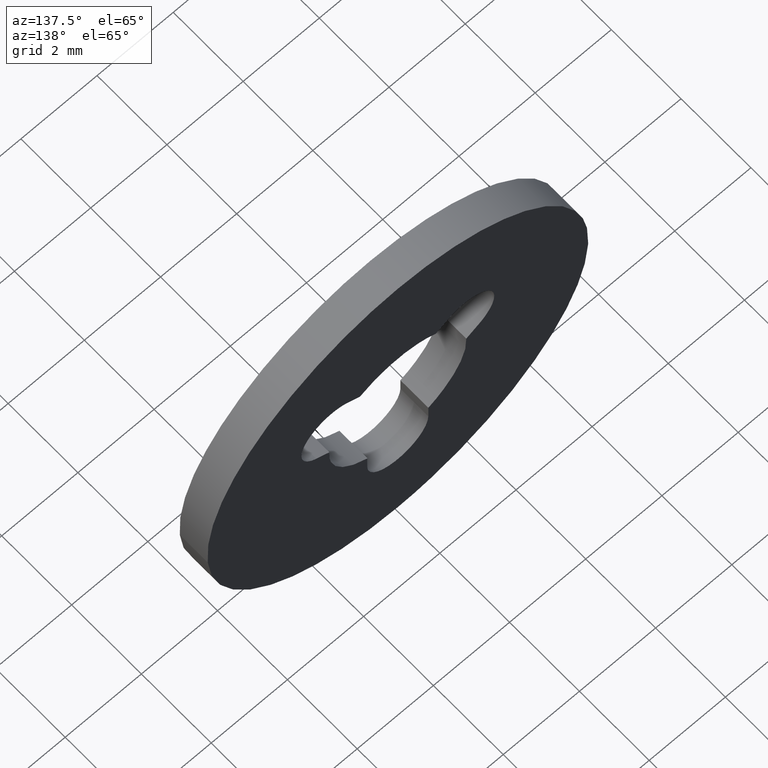
[diagram: clean part render]
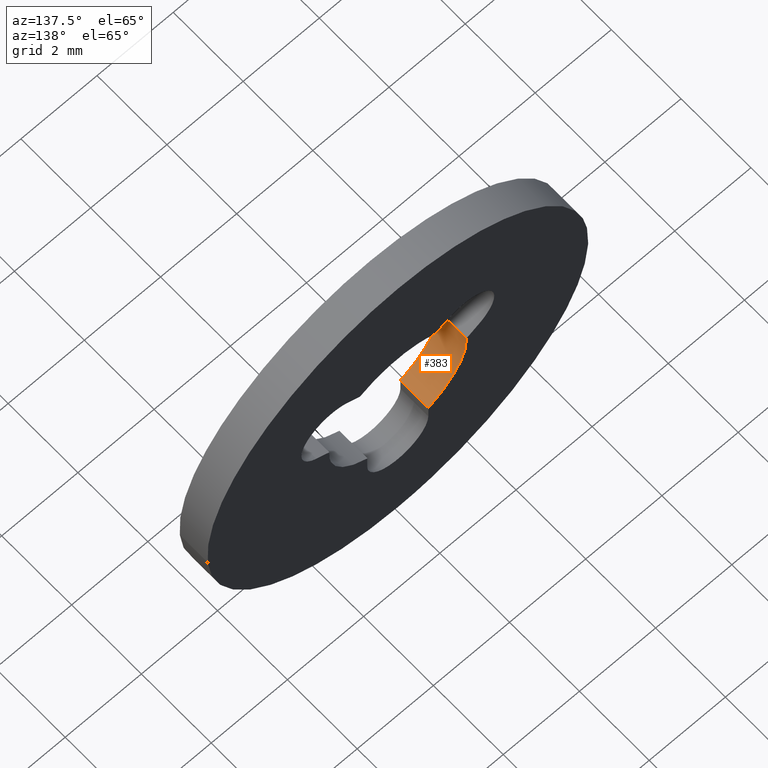
[diagram: same view with one face highlighted and labeled with its STEP entity id]
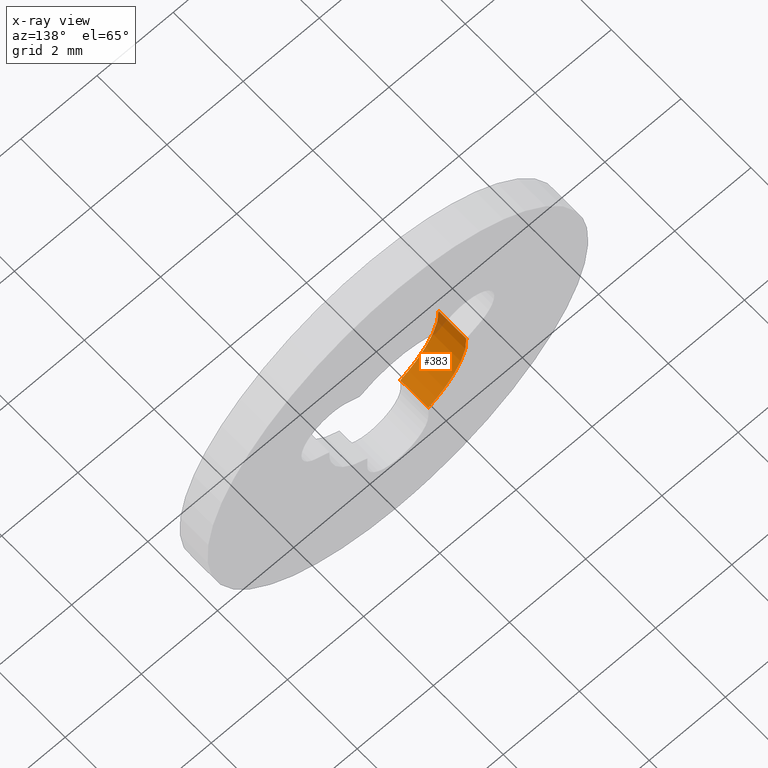
[diagram: x-ray of the same camera — body ghosted, the highlighted face saturated]
A machine part, auxiliary view. The second image highlights one B-rep face of the part: STEP entity #383.
The next image is the same camera in x-ray: the body ghosted, the highlighted face saturated — about 5% of this face is hidden behind the body in this view.
In plain terms, the highlighted face is a freeform B-spline surface patch.
Its self-contained STEP definition (entity closure, byte-faithful):
#308=CARTESIAN_POINT('',(-0.800000000000000,0.0,-1.612451549659710));
#309=VERTEX_POINT('',#308);
#316=CARTESIAN_POINT('',(-0.800000000000000,0.800000000000023,-1.612451549659710));
#317=VERTEX_POINT('',#316);
#323=CARTESIAN_POINT('',(-0.800000000000000,0.800000000000023,-1.612451549659710));
#324=CARTESIAN_POINT('',(-0.800000000000000,0.0,-1.612451549659710));
#325=QUASI_UNIFORM_CURVE('',1,(#323,#324),.UNSPECIFIED.,.F.,.U.);
#326=EDGE_CURVE('',#317,#309,#325,.T.);
#331=CARTESIAN_POINT('',(-0.735352100026733,0.820000000000024,-1.642941657207057));
#332=CARTESIAN_POINT('',(-0.735352100026733,-0.020500000000001,-1.642941657207057));
#333=CARTESIAN_POINT('',(-1.943554409577728,0.820000000000024,-1.102171325109073));
#334=CARTESIAN_POINT('',(-1.943554409577728,-0.020500000000001,-1.102171325109073));
#335=CARTESIAN_POINT('',(-1.787437346550587,0.820000000000024,0.212291620551055));
#336=CARTESIAN_POINT('',(-1.787437346550587,-0.020500000000001,0.212291620551055));
#344=(BOUNDED_SURFACE()B_SPLINE_SURFACE(1,2,((#331,#333,#335),(#332,#334,#336)),.UNSPECIFIED.,.F.,.F.,.U.)B_SPLINE_SURFACE_WITH_KNOTS((2,2),(3,3),(0.0,1.0),(0.0,2.362383615130197),.UNSPECIFIED.)GEOMETRIC_REPRESENTATION_ITEM()RATIONAL_B_SPLINE_SURFACE(((1.0,0.802530900722325,0.992359931106881),(1.0,0.802530900722325,0.992359931106881)))REPRESENTATION_ITEM('')SURFACE());
#345=CARTESIAN_POINT('',(-1.796423492117540,0.0,0.113413566067874));
#346=VERTEX_POINT('',#345);
#347=CARTESIAN_POINT('',(-1.796423492117537,0.0,0.113413566067874));
#348=CARTESIAN_POINT('',(-1.871810468826477,0.0,-1.080684641536401));
#349=CARTESIAN_POINT('',(-0.800000000000000,0.0,-1.612451549659710));
#357=(BOUNDED_CURVE()B_SPLINE_CURVE(2,(#347,#348,#349),.UNSPECIFIED.,.F.,.U.)CURVE()GEOMETRIC_REPRESENTATION_ITEM()QUASI_UNIFORM_CURVE()RATIONAL_B_SPLINE_CURVE((1.0,0.832802137488904,1.0))REPRESENTATION_ITEM(''));
#358=EDGE_CURVE('',#346,#309,#357,.T.);
#359=ORIENTED_EDGE('',*,*,#358,.T.);
#360=ORIENTED_EDGE('',*,*,#326,.F.);
#361=CARTESIAN_POINT('',(-1.796423492117540,0.800000000000023,0.113413566067874));
#362=VERTEX_POINT('',#361);
#363=CARTESIAN_POINT('',(-1.796423492117537,0.800000000000023,0.113413566067874));
#364=CARTESIAN_POINT('',(-1.871810468826477,0.800000000000023,-1.080684641536401));
#365=CARTESIAN_POINT('',(-0.800000000000000,0.800000000000023,-1.612451549659710));
#373=(BOUNDED_CURVE()B_SPLINE_CURVE(2,(#363,#364,#365),.UNSPECIFIED.,.F.,.U.)CURVE()GEOMETRIC_REPRESENTATION_ITEM()QUASI_UNIFORM_CURVE()RATIONAL_B_SPLINE_CURVE((1.0,0.832802137488904,1.0))REPRESENTATION_ITEM(''));
#374=EDGE_CURVE('',#362,#317,#373,.T.);
#375=ORIENTED_EDGE('',*,*,#374,.F.);
#376=CARTESIAN_POINT('',(-1.796423492117540,0.800000000000023,0.113413566067874));
#377=CARTESIAN_POINT('',(-1.796423492117540,0.0,0.113413566067874));
#378=QUASI_UNIFORM_CURVE('',1,(#376,#377),.UNSPECIFIED.,.F.,.U.);
#379=EDGE_CURVE('',#362,#346,#378,.T.);
#380=ORIENTED_EDGE('',*,*,#379,.T.);
#381=EDGE_LOOP('',(#359,#360,#375,#380));
#382=FACE_OUTER_BOUND('',#381,.T.);
#383=ADVANCED_FACE('',(#382),#344,.F.);